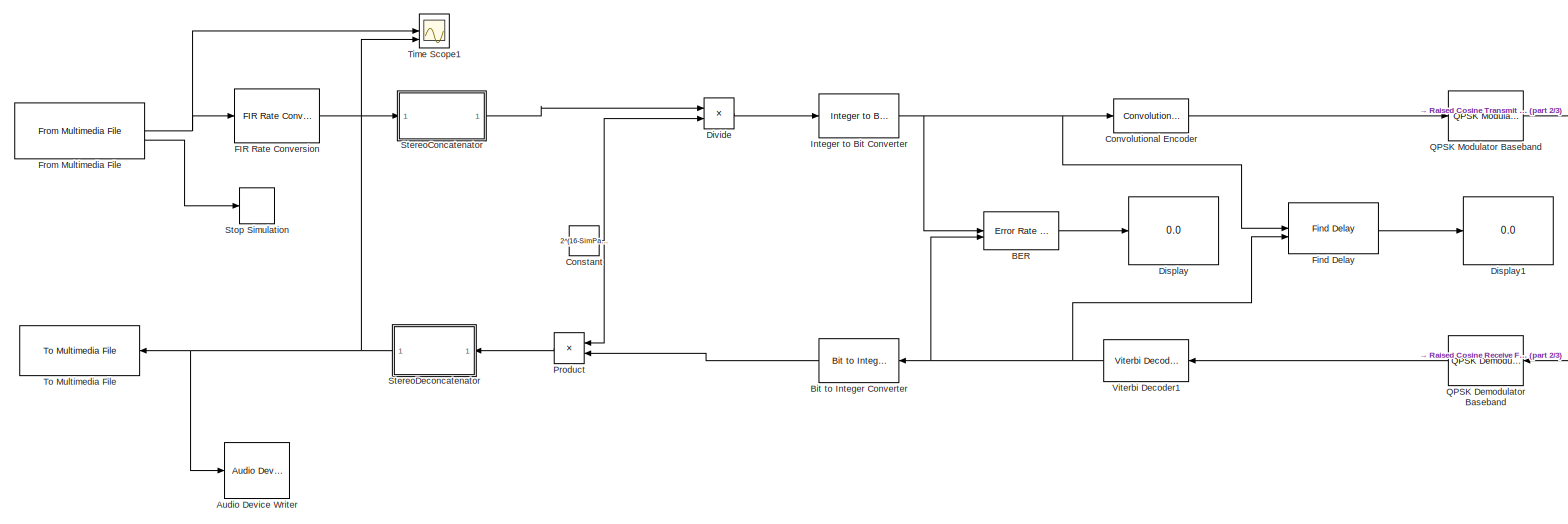
[diagram: root canvas - part 1/3, center side, full height]
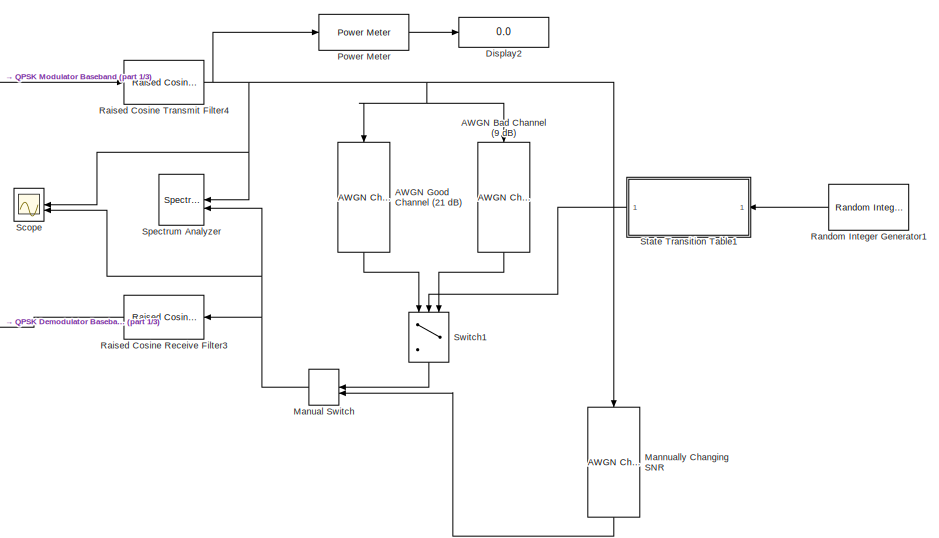
[diagram: root canvas - part 2/3, right side, full height]
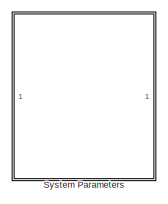
[diagram: root canvas - part 3/3, middle left region]
MODEL slx_ee877fce7bc7
KIND model
CONFIG AbsTol = auto
CONFIG EnableMultiTasking = off
CONFIG FixedStep = auto
CONFIG MaxStep = auto
CONFIG MinStep = auto
CONFIG PreLoadFcn = maxNumErrs = 100;\nmaxNumBits = 1e6;\nEbNo = 4;\n
CONFIG RelTol = 1e-3
CONFIG SampleTimeConstraint = Unconstrained
CONFIG SolverName = VariableStepAuto
CONFIG StartTime = 0.0
CONFIG StopTime = 60
BLOCK [Reference] AWGN Bad Channel (9 dB)  REF=commchan3/AWGN
Channel
  NameLocation = left
  SourceBlock = commchan3/AWGN\nChannel
  SourceType = AWGN Channel
BLOCK [Reference] AWGN Good Channel (21 dB)  REF=commchan3/AWGN
Channel
  NameLocation = left
  SourceBlock = commchan3/AWGN\nChannel
  SourceType = AWGN Channel
BLOCK [Reference] Audio Device Writer  REF=dspsnks4/Audio Device
Writer
  Commented = on
  LibrarySourceBlock = audiosinks/Audio Device\nWriter
  SourceBlock = dspsnks4/Audio Device\nWriter
  SourceType = Audio Device Writer
BLOCK [Reference] BER  REF=commsink2/Error Rate
Calculation
  SourceBlock = commsink2/Error Rate\nCalculation
  SourceType = Error Rate Calculation
BLOCK [Reference] Bit to Integer Converter  REF=simulink/Logic and Bit
Operations/Bit to Integer
Converter
  SourceBlock = simulink/Logic and Bit\nOperations/Bit to Integer\nConverter
  SourceType = Bit to Integer Converter
BLOCK [Constant] Constant
  Value = 2^(16-SimPara.BtsPerSmp)
BLOCK [Reference] Convolutional Encoder  REF=commcnvcod2/Convolutional
Encoder
  SourceBlock = commcnvcod2/Convolutional\nEncoder
  SourceType = Convolutional Encoder
BLOCK [Display] Display
  Decimation = 1
BLOCK [Display] Display1
  Decimation = 1
BLOCK [Display] Display2
  Decimation = 1
BLOCK [Product] Divide
  Inputs = */
  OutDataTypeStr = Inherit: Same as first input
BLOCK [Reference] FIR Rate Conversion  REF=dspmlti4/FIR Rate
Conversion
  SourceBlock = dspmlti4/FIR Rate\nConversion
  SourceType = FIR Rate Conversion
BLOCK [Reference] Find Delay  REF=commutil2/Find Delay
  SourceBlock = commutil2/Find Delay
  SourceType = Find Delay
BLOCK [Reference] From Multimedia File  REF=dspvision/From Multimedia File
  LibrarySourceBlock = audiosources/From Multimedia File
  SourceBlock = dspvision/From Multimedia File
  SourceType = From Multimedia File
BLOCK [Reference] Integer to Bit Converter  REF=simulink/Logic and Bit
Operations/Integer to Bit
Converter
  SourceBlock = simulink/Logic and Bit\nOperations/Integer to Bit\nConverter
  SourceType = Integer to Bit Converter
BLOCK [Reference] Mannually Changing SNR  REF=commchan3/AWGN
Channel
  NameLocation = left
  SourceBlock = commchan3/AWGN\nChannel
  SourceType = AWGN Channel
BLOCK [ManualSwitch] Manual Switch
BLOCK [Reference] Power Meter  REF=dspstat3/Power Meter
  SourceBlock = dspstat3/Power Meter
  SourceType = dsp.simulink.PowerMeter
BLOCK [Product] Product
  OutDataTypeStr = int16
BLOCK [Reference] QPSK Demodulator Baseband  REF=commdigbbndpm3/QPSK
Demodulator
Baseband
  NameLocation = top
  SourceBlock = commdigbbndpm3/QPSK\nDemodulator\nBaseband
  SourceType = QPSK Demodulator Baseband
BLOCK [Reference] QPSK Modulator Baseband  REF=commdigbbndpm3/QPSK
Modulator
Baseband
  SourceBlock = commdigbbndpm3/QPSK\nModulator\nBaseband
  SourceType = QPSK Modulator Baseband
BLOCK [Reference] Raised Cosine Receive Filter3  REF=commfilt2/Raised Cosine
Receive Filter
  LibrarySourceBlock = commhdlfilt/Raised Cosine\nReceive Filter
  SourceBlock = commfilt2/Raised Cosine\nReceive Filter
  SourceType = Raised Cosine Receive Filter
  UserDataPersistent = on
BLOCK [Reference] Raised Cosine Transmit Filter4  REF=commfilt2/Raised Cosine
Transmit Filter
  LibrarySourceBlock = commhdlfilt/Raised Cosine\nTransmit Filter
  SourceBlock = commfilt2/Raised Cosine\nTransmit Filter
  SourceType = Raised Cosine Transmit Filter
  UserDataPersistent = on
BLOCK [Reference] Random Integer Generator1  REF=commrandsrc3/Random Integer
Generator
  NameLocation = top
  SourceBlock = commrandsrc3/Random Integer\nGenerator
  SourceType = Random Integer Generator
BLOCK [Scope] Scope
  Floating = off
  NumInputPorts = 2
  ScopeSpecificationString = Simulink.scopes.TimeScopeBlockCfg('CurrentConfiguration', extmgr.ConfigurationSet(extmgr.Configuration('Core','General UI',true),extmgr.Configuration('Core','Source UI',true),extmgr.Configuration('Sources','WiredSimulink',true,'DataLoggingVariableName','ScopeData1'),extmgr.Configuration('Visuals','Time Domain',true,'SerializedDisplays',{struct('MinYLimReal','-10','MaxYLimReal','10','YLabelReal',''...<+1703ch>
BLOCK [SpectrumAnalyzer] Spectrum Analyzer
  FrequencySpan = Start and stop frequencies
  GraphicalSettings = {"GraphicalSettings":{"Style":{"BackgroundColor":[0.12941176470588237,0.12941176470588237,0.12941176470588237],"AxesColor":[0.07058823529411765,0.07058823529411765,0.07058823529411765],"LabelsColor":[0.8509803921568627,0.8509803921568627,0.8509803921568627],"PreserveColors":false,"Visible":[true,true],"LineStyle":["-","-"],"LineColor":[[1,0.9098039215686274,0.39215686274509803],[0.1490196078431372...<+1091ch>
  MeasurementChannel = 2
  NumInputPorts = 2
  ScopeFrameLocation = window
  SelectedToolstripTab = spectrumAnalyzerToolstrip.channelMeasurementsTab
  ShowLegend = on
  StartFrequency = 0
  StopFrequency = 600000
  WasSavedAsWebScope = on
  WindowPosition = [1.000000,49.000000,1504.000000,932.000000,]
  YLimits = [-142.8961798129679,30.326241209565428]
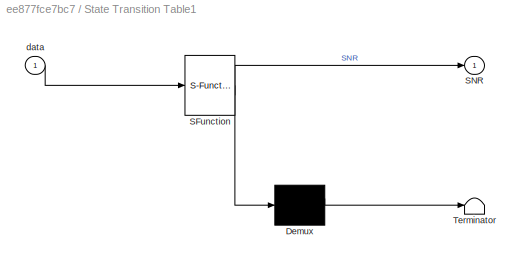
BLOCK [SubSystem] State Transition Table1
  ErrorFcn = Stateflow.Translate.translate
  PermitHierarchicalResolution = ExplicitOnly
  SFBlockType = State Transition Table
  ShowPortLabels = SignalName
  TreatAsAtomicUnit = on
BLOCK [Demux] State Transition Table1/ Demux 
  Outputs = 1
BLOCK [S-Function] State Transition Table1/ SFunction 
  EnableBusSupport = on
  FunctionName = sf_sfun
  PortCounts = [1 2]
  SFcnIsStateOwnerBlock = off
  SFunctionDeploymentMode = off
  Tag = Stateflow S-Function 1
BLOCK [Terminator] State Transition Table1/ Terminator 
BLOCK [Outport] State Transition Table1/SNR
BLOCK [Inport] State Transition Table1/data
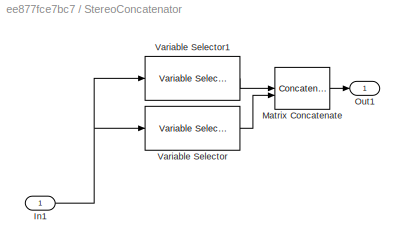
BLOCK [SubSystem] StereoConcatenator
  Commented = through
BLOCK [Inport] StereoConcatenator/In1
BLOCK [Concatenate] StereoConcatenator/Matrix Concatenate
  ConcatenateDimension = 2
BLOCK [Outport] StereoConcatenator/Out1
BLOCK [Reference] StereoConcatenator/Variable Selector  REF=dspindex/Variable
Selector
  SourceBlock = dspindex/Variable\nSelector
  SourceType = Variable Selector
BLOCK [Reference] StereoConcatenator/Variable Selector1  REF=dspindex/Variable
Selector
  SourceBlock = dspindex/Variable\nSelector
  SourceType = Variable Selector
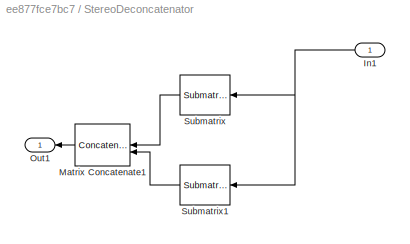
BLOCK [SubSystem] StereoDeconcatenator
  Commented = through
BLOCK [Inport] StereoDeconcatenator/In1
BLOCK [Concatenate] StereoDeconcatenator/Matrix Concatenate1
  ConcatenateDimension = 2
  Mode = Multidimensional array
BLOCK [Outport] StereoDeconcatenator/Out1
BLOCK [Reference] StereoDeconcatenator/Submatrix  REF=matrix_library/Submatrix
  LibrarySourceBlock = simulink/Matrix\nOperations/Submatrix
  SourceBlock = matrix_library/Submatrix
  SourceType = Submatrix
BLOCK [Reference] StereoDeconcatenator/Submatrix1  REF=matrix_library/Submatrix
  LibrarySourceBlock = simulink/Matrix\nOperations/Submatrix
  SourceBlock = matrix_library/Submatrix
  SourceType = Submatrix
BLOCK [Stop] Stop Simulation
BLOCK [Switch] Switch1
  Criteria = u2 > Threshold
  InputSameDT = off
  NameLocation = left
  SaturateOnIntegerOverflow = off
BLOCK [SubSystem] System Parameters
  NameLocation = top
BLOCK [Scope] Time Scope1
  DefaultConfigurationName = spbscopes.TimeScopeBlockCfg
  Floating = off
  NameLocation = left
  NumInputPorts = 3
  ScopeSpecificationString = spbscopes.TimeScopeBlockCfg('CurrentConfiguration', extmgr.ConfigurationSet(extmgr.Configuration('Core','General UI',true),extmgr.Configuration('Core','Source UI',true),extmgr.Configuration('Sources','WiredSimulink',true,'DataLoggingVariableName','ScopeData1'),extmgr.Configuration('Visuals','Time Domain',true,'DisplayPropertyDefaults',struct('MinYLimReal','6698.95488','MaxYLimReal','7488.92357','Y...<+2007ch>
  UserDataPersistent = on
BLOCK [Reference] To Multimedia File  REF=dspvision/To Multimedia File
  LibrarySourceBlock = audiosinks/To Multimedia File
  SourceBlock = dspvision/To Multimedia File
  SourceType = To Multimedia File
BLOCK [Reference] Viterbi Decoder1  REF=commcnvcod2/Viterbi Decoder
  NameLocation = top
  SourceBlock = commcnvcod2/Viterbi Decoder
  SourceType = Viterbi Decoder
LINE AWGN Bad Channel (9 dB):1 -> Switch1:3
LINE AWGN Good Channel (21 dB):1 -> Switch1:1
LINE BER:1 -> Display:1
LINE Bit to Integer Converter:1 -> Product:2
NET Constant:1 -> Divide:2, Product:1
LINE Convolutional Encoder:1 -> QPSK Modulator Baseband:1
LINE Divide:1 -> Integer to Bit Converter:1
LINE FIR Rate Conversion:1 -> StereoConcatenator:1
LINE Find Delay:1 -> Display1:1
NET From Multimedia File:1 -> FIR Rate Conversion:1, Time Scope1:1
LINE From Multimedia File:2 -> Stop Simulation:1
NET Integer to Bit Converter:1 -> BER:1, Convolutional Encoder:1, Find Delay:1
LINE Mannually Changing SNR:1 -> Manual Switch:2
NET Manual Switch:1 -> Raised Cosine Receive Filter3:1, Scope:2, Spectrum Analyzer:2
LINE Power Meter:1 -> Display2:1
LINE Product:1 -> StereoDeconcatenator:1
LINE QPSK Demodulator Baseband:1 -> Viterbi Decoder1:1
LINE QPSK Modulator Baseband:1 -> Raised Cosine Transmit Filter4:1
LINE Raised Cosine Receive Filter3:1 -> QPSK Demodulator Baseband:1
NET Raised Cosine Transmit Filter4:1 -> AWGN Bad Channel (9 dB):1, AWGN Good Channel (21 dB):1, Mannually Changing SNR:1, Power Meter:1, Scope:1, Spectrum Analyzer:1
LINE Random Integer Generator1:1 -> State Transition Table1:1
LINE State Transition Table1:1 -> Switch1:2
NET StereoConcatenator/In1:1 -> StereoConcatenator/Variable Selector1:1, StereoConcatenator/Variable Selector:1
LINE StereoConcatenator/Matrix Concatenate:1 -> StereoConcatenator/Out1:1
LINE StereoConcatenator/Variable Selector1:1 -> StereoConcatenator/Matrix Concatenate:1
LINE StereoConcatenator/Variable Selector:1 -> StereoConcatenator/Matrix Concatenate:2
LINE StereoConcatenator:1 -> Divide:1
NET StereoDeconcatenator/In1:1 -> StereoDeconcatenator/Submatrix1:1, StereoDeconcatenator/Submatrix:1
LINE StereoDeconcatenator/Matrix Concatenate1:1 -> StereoDeconcatenator/Out1:1
LINE StereoDeconcatenator/Submatrix1:1 -> StereoDeconcatenator/Matrix Concatenate1:2
LINE StereoDeconcatenator/Submatrix:1 -> StereoDeconcatenator/Matrix Concatenate1:1
NET StereoDeconcatenator:1 -> Audio Device Writer:1, Time Scope1:3, To Multimedia File:1
LINE Switch1:1 -> Manual Switch:1
NET Viterbi Decoder1:1 -> BER:2, Bit to Integer Converter:1, Find Delay:2
note: NET lines group one-source signal fan-out (src -> all destinations, sorted); 1:1 wires keep LINE
CHART State Transition Table1 states=2 transitions=7
  STATE_LABEL 'state1_G_'
  STATE_LABEL 'state2_B_'
CHART  states=0 transitions=0
